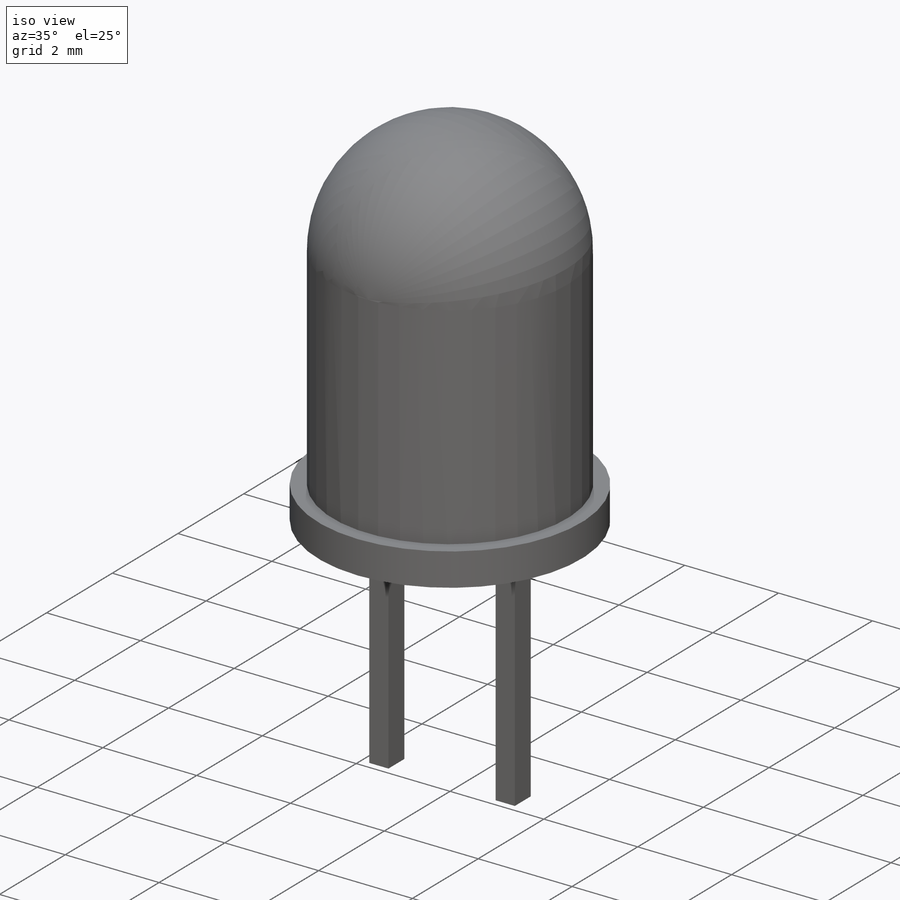
[diagram: iso view]
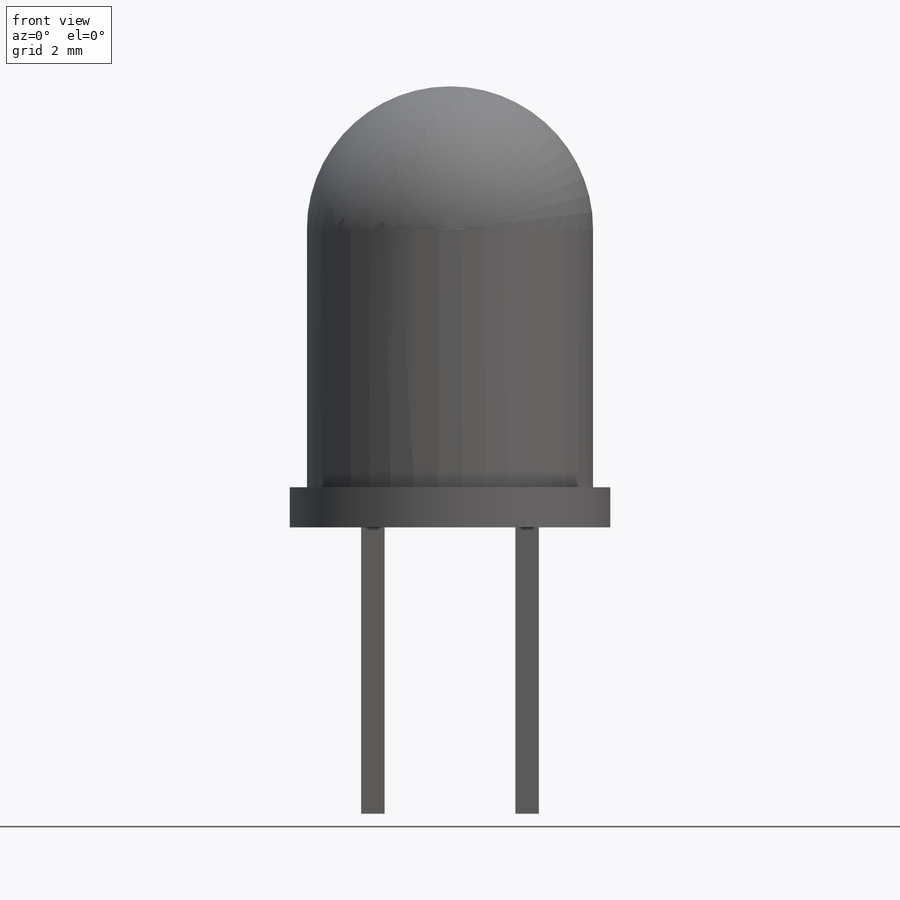
[diagram: front view]
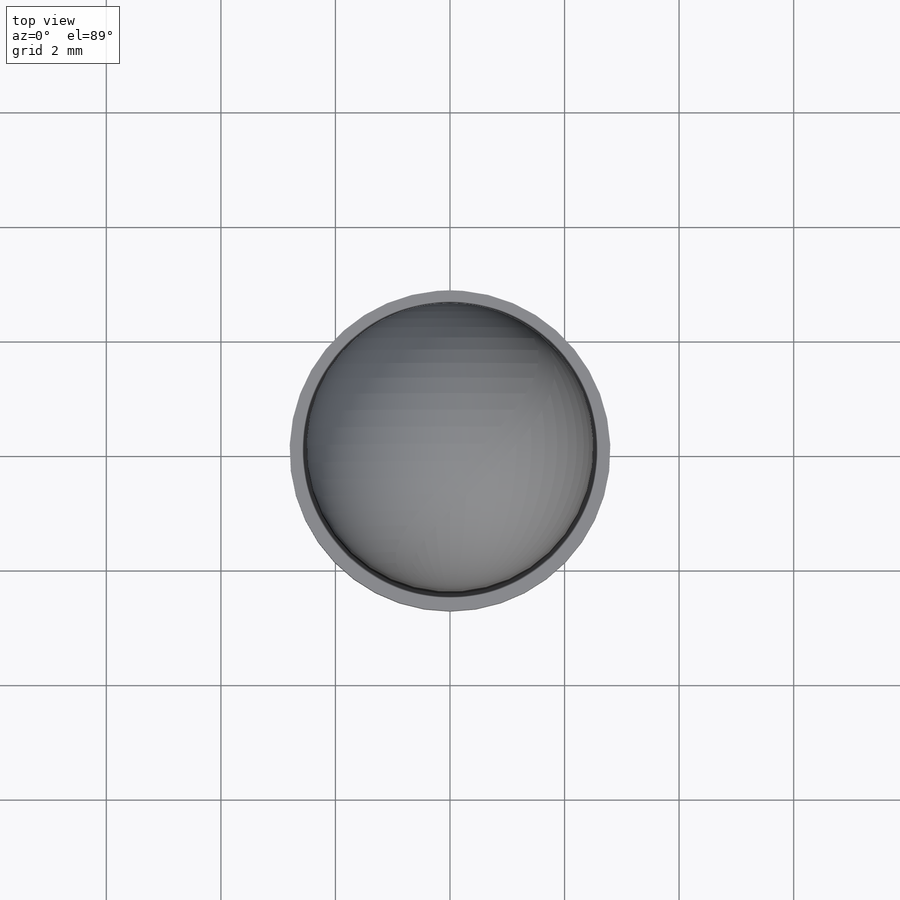
[diagram: top view]
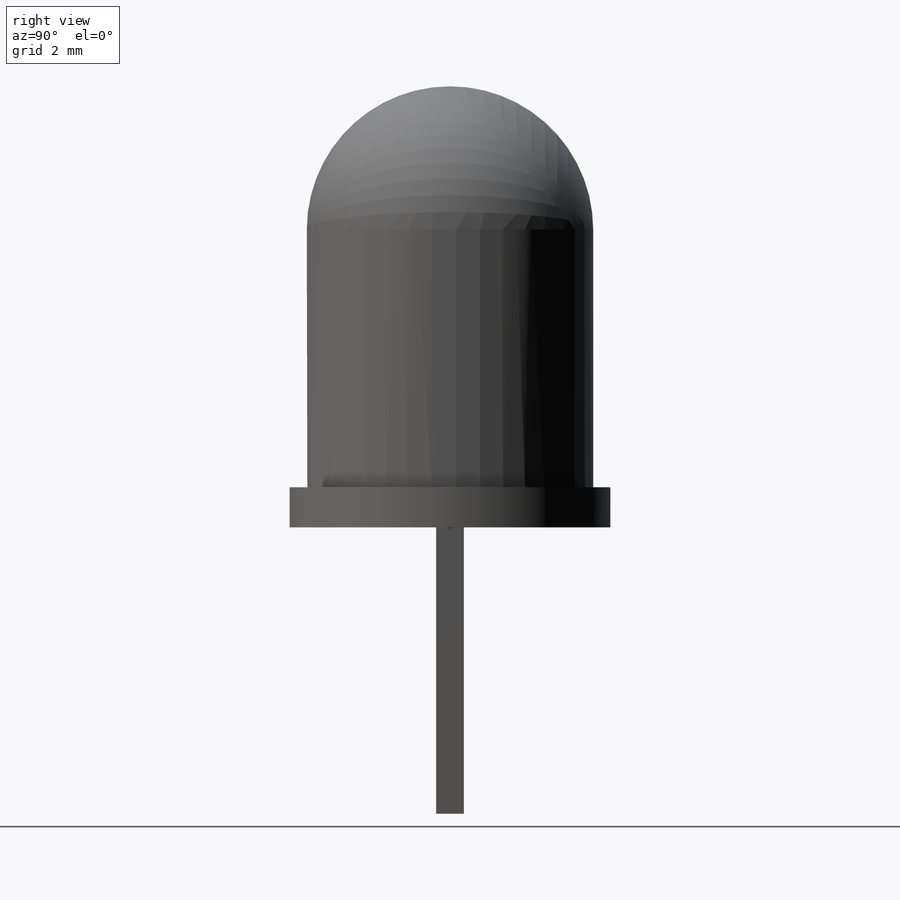
[diagram: right view]
SOLIDWORKS PART (.sldprt)
format: sldprt  version: not decoded by parser v0  size: 159,232 bytes
history: native  units: mm
features: sketch x3, extrude x3, material x1, fillet x1 (+12 scaffold rows collapsed)
feature tree (20):
  scaffold x12  (default folders/planes/origin — collapsed)
  material  "Material <não especificado>"
  sketch  "Sketch2"  dims[D1=5.0mm]
  extrude  "Boss-Extrude1"  Depth=7mm
  sketch  "Sketch3"  dims[D1=~2.932951mm]
  extrude  "Boss-Extrude2"  Depth=0.7mm
  fillet  "Fillet1"  Radius=2.5mm
  sketch  "Sketch4"
  extrude  "Boss-Extrude3"  Depth=5mm
decode coverage: 6 of 7 modeling features carry decoded parameters
note: ~ marks probable driven/reference dimensions
note: suppression state not decoded; provenance and decode notes live in map.json
